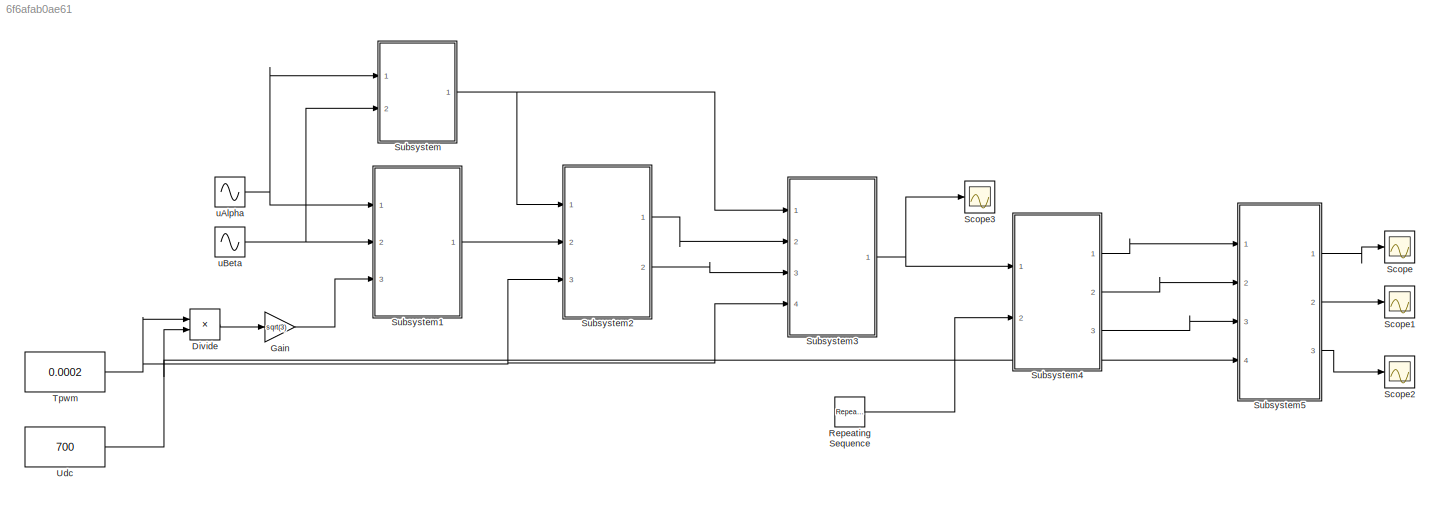
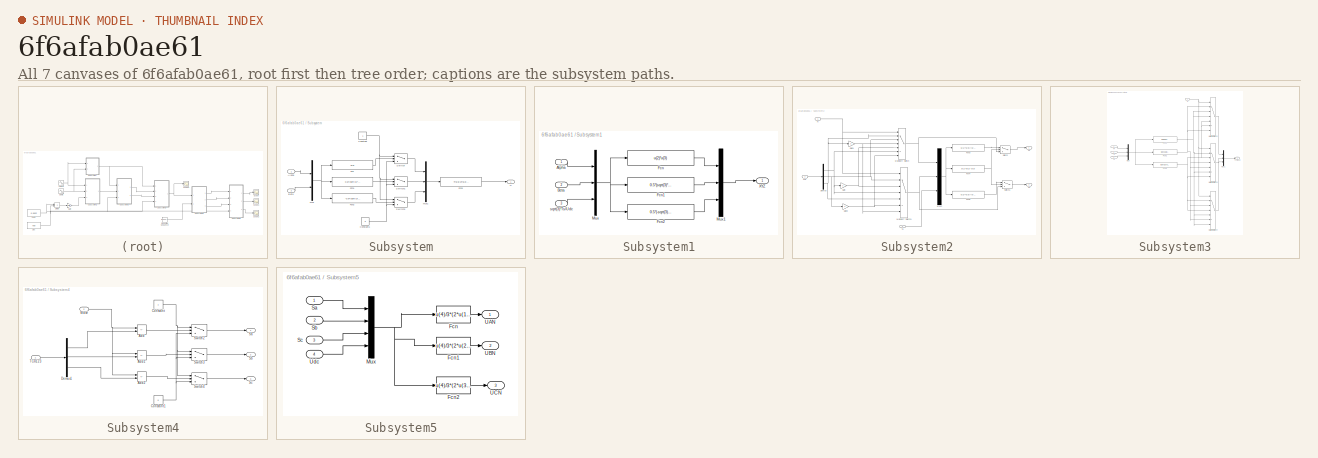
[diagram: thumbnail index - all 7 canvases of the model, root first then tree order]
MODEL slx_6f6afab0ae61
KIND model
CONFIG AbsTol = auto
CONFIG EnableMultiTasking = off
CONFIG FixedStep = auto
CONFIG MaxStep = 0.00001
CONFIG MinStep = auto
CONFIG RelTol = 1e-6
CONFIG SampleTimeConstraint = Unconstrained
CONFIG Solver = ode23s
CONFIG SolverName = ode23s
CONFIG StartTime = 0.0
CONFIG StopTime = 0.1
BLOCK [Product] Divide
  Inputs = */
  Ports = [2, 1]
BLOCK [Gain] Gain
  Gain = sqrt(3)
BLOCK [Reference] Repeating Sequence  REF=simulink/Sources/Repeating
Sequence
  Ports = [0, 1]
  SourceBlock = simulink/Sources/Repeating\nSequence
  SourceProductBaseCode = SL
  SourceType = Repeating table
BLOCK [Scope] Scope
  Floating = off
  NumInputPorts = 1
  Ports = [1]
  ScopeSpecificationString = Simulink.scopes.TimeScopeBlockCfg('CurrentConfiguration', extmgr.ConfigurationSet(extmgr.Configuration('Core','General UI',true),extmgr.Configuration('Core','Source UI',true),extmgr.Configuration('Sources','WiredSimulink',true),extmgr.Configuration('Visuals','Time Domain',true,'SerializedDisplays',{struct('MinYLimReal','-583.33333','MaxYLimReal','583.33333','YLabelReal','','MinYLimMag',' 0.00000',...<+1365ch>
BLOCK [Scope] Scope1
  Floating = off
  NumInputPorts = 1
  Ports = [1]
  ScopeSpecificationString = Simulink.scopes.TimeScopeBlockCfg('CurrentConfiguration', extmgr.ConfigurationSet(extmgr.Configuration('Core','General UI',true),extmgr.Configuration('Core','Source UI',true),extmgr.Configuration('Sources','WiredSimulink',true,'DataLoggingVariableName','ScopeData1'),extmgr.Configuration('Visuals','Time Domain',true),extmgr.Configuration('Tools','Plot Navigation',true),extmgr.Configuration('Tools',...<+40ch>
BLOCK [Scope] Scope2
  Floating = off
  NumInputPorts = 1
  Ports = [1]
  ScopeSpecificationString = Simulink.scopes.TimeScopeBlockCfg('CurrentConfiguration', extmgr.ConfigurationSet(extmgr.Configuration('Core','General UI',true),extmgr.Configuration('Core','Source UI',true),extmgr.Configuration('Sources','WiredSimulink',true,'DataLoggingVariableName','ScopeData2'),extmgr.Configuration('Visuals','Time Domain',true),extmgr.Configuration('Tools','Plot Navigation',true),extmgr.Configuration('Tools',...<+40ch>
BLOCK [Scope] Scope3
  Floating = off
  NumInputPorts = 1
  Ports = [1]
  ScopeSpecificationString = Simulink.scopes.TimeScopeBlockCfg('CurrentConfiguration', extmgr.ConfigurationSet(extmgr.Configuration('Core','General UI',true),extmgr.Configuration('Core','Source UI',true),extmgr.Configuration('Sources','WiredSimulink',true,'DataLoggingVariableName','ScopeData1'),extmgr.Configuration('Visuals','Time Domain',true,'SerializedDisplays',{struct('MinYLimReal','0.000019','MaxYLimReal','0.000081','YLa...<+1407ch>
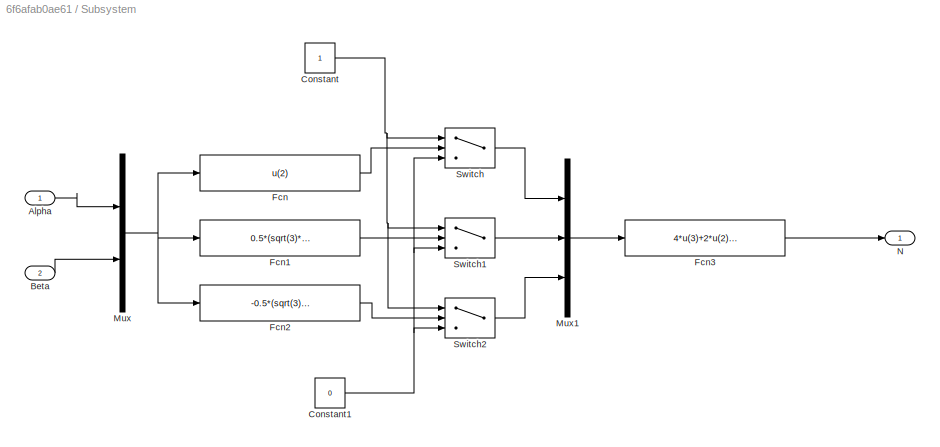
BLOCK [SubSystem] Subsystem
  Ports = [2, 1]
  RequestExecContextInheritance = off
BLOCK [Inport] Subsystem/Alpha 
BLOCK [Inport] Subsystem/Beta
  Port = 2
BLOCK [Constant] Subsystem/Constant
BLOCK [Constant] Subsystem/Constant1
  Value = 0
BLOCK [Fcn] Subsystem/Fcn
  Expr = u(2)
BLOCK [Fcn] Subsystem/Fcn1
  Expr = 0.5*(sqrt(3)*u(1)-u(2))
BLOCK [Fcn] Subsystem/Fcn2
  Expr = -0.5*(sqrt(3)*u(1)+u(2))
BLOCK [Fcn] Subsystem/Fcn3
  Expr = 4*u(3)+2*u(2)+u(1)
BLOCK [Mux] Subsystem/Mux
  DisplayOption = bar
  Inputs = 2
  Ports = [2, 1]
BLOCK [Mux] Subsystem/Mux1
  DisplayOption = bar
  Inputs = 3
  Ports = [3, 1]
BLOCK [Outport] Subsystem/N
BLOCK [Switch] Subsystem/Switch
  Criteria = u2 > Threshold
  InputSameDT = off
  SaturateOnIntegerOverflow = off
BLOCK [Switch] Subsystem/Switch1
  Criteria = u2 > Threshold
  InputSameDT = off
  SaturateOnIntegerOverflow = off
BLOCK [Switch] Subsystem/Switch2
  Criteria = u2 > Threshold
  InputSameDT = off
  SaturateOnIntegerOverflow = off
BLOCK [SubSystem] Subsystem1
  Ports = [3, 1]
  RequestExecContextInheritance = off
BLOCK [Inport] Subsystem1/Alpha 
BLOCK [Inport] Subsystem1/Beta
  Port = 2
BLOCK [Fcn] Subsystem1/Fcn
  Expr = u(2)*u(3)
BLOCK [Fcn] Subsystem1/Fcn1
  Expr = 0.5*(sqrt(3)*u(1)+u(2))*u(3)
BLOCK [Fcn] Subsystem1/Fcn2
  Expr = 0.5*(-sqrt(3)*u(1)+u(2))*u(3)
BLOCK [Mux] Subsystem1/Mux
  DisplayOption = bar
  Inputs = 3
  Ports = [3, 1]
BLOCK [Mux] Subsystem1/Mux1
  DisplayOption = bar
  Inputs = 3
  Ports = [3, 1]
BLOCK [Outport] Subsystem1/XYZ
BLOCK [Inport] Subsystem1/sqrt(3)*Ts//Udc
  Port = 3
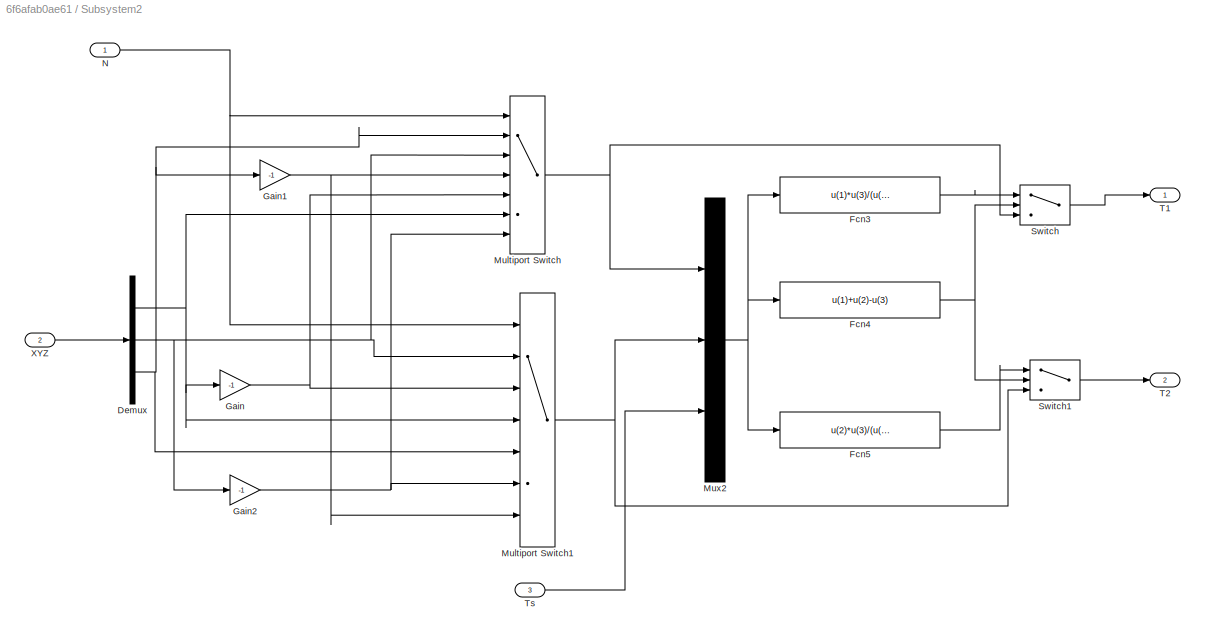
BLOCK [SubSystem] Subsystem2
  Ports = [3, 2]
  RequestExecContextInheritance = off
BLOCK [Demux] Subsystem2/Demux
  Outputs = 3
  Ports = [1, 3]
BLOCK [Fcn] Subsystem2/Fcn3
  Expr = u(1)*u(3)/(u(1)+u(2))
BLOCK [Fcn] Subsystem2/Fcn4
  Expr = u(1)+u(2)-u(3)
BLOCK [Fcn] Subsystem2/Fcn5
  Expr = u(2)*u(3)/(u(1)+u(2))
BLOCK [Gain] Subsystem2/Gain
  Gain = -1
BLOCK [Gain] Subsystem2/Gain1
  Gain = -1
BLOCK [Gain] Subsystem2/Gain2
  Gain = -1
BLOCK [MultiPortSwitch] Subsystem2/Multiport Switch
  InputSameDT = off
  Inputs = 6
  Ports = [7, 1]
  SaturateOnIntegerOverflow = off
BLOCK [MultiPortSwitch] Subsystem2/Multiport Switch1
  InputSameDT = off
  Inputs = 6
  Ports = [7, 1]
  SaturateOnIntegerOverflow = off
BLOCK [Mux] Subsystem2/Mux2
  DisplayOption = bar
  Inputs = 3
  Ports = [3, 1]
BLOCK [Inport] Subsystem2/N
BLOCK [Switch] Subsystem2/Switch
  Criteria = u2 > Threshold
  InputSameDT = off
  SaturateOnIntegerOverflow = off
BLOCK [Switch] Subsystem2/Switch1
  Criteria = u2 > Threshold
  InputSameDT = off
  SaturateOnIntegerOverflow = off
BLOCK [Outport] Subsystem2/T1
BLOCK [Outport] Subsystem2/T2
  Port = 2
BLOCK [Inport] Subsystem2/Ts
  Port = 3
BLOCK [Inport] Subsystem2/XYZ 
  Port = 2
BLOCK [SubSystem] Subsystem3
  Ports = [4, 1]
  RequestExecContextInheritance = off
BLOCK [Fcn] Subsystem3/Fcn1
  Expr = (u(3)-u(1)-u(2))/4
BLOCK [Fcn] Subsystem3/Fcn2
  Expr = (u(3)+u(1)-u(2))/4
BLOCK [Fcn] Subsystem3/Fcn6
  Expr = (u(3)+u(1)+u(2))/4
BLOCK [MultiPortSwitch] Subsystem3/Multiport Switch2
  InputSameDT = off
  Inputs = 6
  Ports = [7, 1]
  SaturateOnIntegerOverflow = off
BLOCK [MultiPortSwitch] Subsystem3/Multiport Switch3
  InputSameDT = off
  Inputs = 6
  Ports = [7, 1]
  SaturateOnIntegerOverflow = off
BLOCK [MultiPortSwitch] Subsystem3/Multiport Switch4
  InputSameDT = off
  Inputs = 6
  Ports = [7, 1]
  SaturateOnIntegerOverflow = off
BLOCK [Mux] Subsystem3/Mux
  DisplayOption = bar
  Inputs = 3
  Ports = [3, 1]
BLOCK [Mux] Subsystem3/Mux1
  DisplayOption = bar
  Inputs = 3
  Ports = [3, 1]
BLOCK [Inport] Subsystem3/N
BLOCK [Inport] Subsystem3/T4
  Port = 2
BLOCK [Inport] Subsystem3/T6
  Port = 3
BLOCK [Outport] Subsystem3/Tcm123
BLOCK [Inport] Subsystem3/Ts
  Port = 4
BLOCK [SubSystem] Subsystem4
  Ports = [2, 3]
  RequestExecContextInheritance = off
BLOCK [Sum] Subsystem4/Add
  IconShape = rectangular
  Inputs = +-
  Ports = [2, 1]
BLOCK [Sum] Subsystem4/Add1
  IconShape = rectangular
  Inputs = +-
  Ports = [2, 1]
BLOCK [Sum] Subsystem4/Add2
  IconShape = rectangular
  Inputs = +-
  Ports = [2, 1]
BLOCK [Constant] Subsystem4/Constant
BLOCK [Constant] Subsystem4/Constant1
  Value = 0
BLOCK [Demux] Subsystem4/Demux1
  Outputs = 3
  Ports = [1, 3]
BLOCK [Outport] Subsystem4/Sa
BLOCK [Outport] Subsystem4/Sb
  Port = 2
BLOCK [Outport] Subsystem4/Sc
  Port = 3
BLOCK [Switch] Subsystem4/Switch2
  Criteria = u2 > Threshold
  InputSameDT = off
  SaturateOnIntegerOverflow = off
BLOCK [Switch] Subsystem4/Switch3
  Criteria = u2 > Threshold
  InputSameDT = off
  SaturateOnIntegerOverflow = off
BLOCK [Switch] Subsystem4/Switch4
  Criteria = u2 > Threshold
  InputSameDT = off
  SaturateOnIntegerOverflow = off
BLOCK [Inport] Subsystem4/TCm123
BLOCK [Inport] Subsystem4/Wave
  Port = 2
BLOCK [SubSystem] Subsystem5
  Ports = [4, 3]
  RequestExecContextInheritance = off
BLOCK [Fcn] Subsystem5/Fcn
  Expr = u(4)/3*(2*u(1)-u(2)-u(3))
BLOCK [Fcn] Subsystem5/Fcn1
  Expr = u(4)/3*(2*u(2)-u(1)-u(3))
BLOCK [Fcn] Subsystem5/Fcn2
  Expr = u(4)/3*(2*u(3)-u(2)-u(1))
BLOCK [Mux] Subsystem5/Mux
  DisplayOption = bar
  Ports = [4, 1]
BLOCK [Inport] Subsystem5/Sa
BLOCK [Inport] Subsystem5/Sb
  Port = 2
BLOCK [Inport] Subsystem5/Sc
  Port = 3
BLOCK [Outport] Subsystem5/UAN
BLOCK [Outport] Subsystem5/UBN
  Port = 2
BLOCK [Outport] Subsystem5/UCN
  Port = 3
BLOCK [Inport] Subsystem5/Udc
  Port = 4
BLOCK [Constant] Tpwm
  Value = 0.0002
BLOCK [Constant] Udc
  Value = 700
BLOCK [Sin] uAlpha
  Amplitude = 200
  Frequency = 2*50*pi
  Ports = [0, 1]
  SampleTime = 0
BLOCK [Sin] uBeta
  Amplitude = 200
  Frequency = 100*pi
  Phase = pi/2
  Ports = [0, 1]
  SampleTime = 0
LINE Divide:1 -> Gain:1
LINE Gain:1 -> Subsystem1:3
LINE Repeating Sequence:1 -> Subsystem4:2
LINE Subsystem/Alpha :1 -> Subsystem/Mux:1
LINE Subsystem/Beta:1 -> Subsystem/Mux:2
NET Subsystem/Constant1:1 -> Subsystem/Switch1:3, Subsystem/Switch2:3, Subsystem/Switch:3
NET Subsystem/Constant:1 -> Subsystem/Switch1:1, Subsystem/Switch2:1, Subsystem/Switch:1
LINE Subsystem/Fcn1:1 -> Subsystem/Switch1:2
LINE Subsystem/Fcn2:1 -> Subsystem/Switch2:2
LINE Subsystem/Fcn3:1 -> Subsystem/N:1
LINE Subsystem/Fcn:1 -> Subsystem/Switch:2
LINE Subsystem/Mux1:1 -> Subsystem/Fcn3:1
NET Subsystem/Mux:1 -> Subsystem/Fcn1:1, Subsystem/Fcn2:1, Subsystem/Fcn:1
LINE Subsystem/Switch1:1 -> Subsystem/Mux1:2
LINE Subsystem/Switch2:1 -> Subsystem/Mux1:3
LINE Subsystem/Switch:1 -> Subsystem/Mux1:1
LINE Subsystem1/Alpha :1 -> Subsystem1/Mux:1
LINE Subsystem1/Beta:1 -> Subsystem1/Mux:2
LINE Subsystem1/Fcn1:1 -> Subsystem1/Mux1:2
LINE Subsystem1/Fcn2:1 -> Subsystem1/Mux1:3
LINE Subsystem1/Fcn:1 -> Subsystem1/Mux1:1
LINE Subsystem1/Mux1:1 -> Subsystem1/XYZ:1
NET Subsystem1/Mux:1 -> Subsystem1/Fcn1:1, Subsystem1/Fcn2:1, Subsystem1/Fcn:1
LINE Subsystem1/sqrt(3)*Ts//Udc:1 -> Subsystem1/Mux:3
LINE Subsystem1:1 -> Subsystem2:2
NET Subsystem2/Demux:1 -> Subsystem2/Gain:1, Subsystem2/Multiport Switch1:4, Subsystem2/Multiport Switch:6
NET Subsystem2/Demux:2 -> Subsystem2/Gain2:1, Subsystem2/Multiport Switch1:2, Subsystem2/Multiport Switch:3
NET Subsystem2/Demux:3 -> Subsystem2/Gain1:1, Subsystem2/Multiport Switch1:5, Subsystem2/Multiport Switch:2
LINE Subsystem2/Fcn3:1 -> Subsystem2/Switch:1
NET Subsystem2/Fcn4:1 -> Subsystem2/Switch1:2, Subsystem2/Switch:2
LINE Subsystem2/Fcn5:1 -> Subsystem2/Switch1:1
NET Subsystem2/Gain1:1 -> Subsystem2/Multiport Switch1:7, Subsystem2/Multiport Switch:4
NET Subsystem2/Gain2:1 -> Subsystem2/Multiport Switch1:6, Subsystem2/Multiport Switch:7
NET Subsystem2/Gain:1 -> Subsystem2/Multiport Switch1:3, Subsystem2/Multiport Switch:5
NET Subsystem2/Multiport Switch1:1 -> Subsystem2/Mux2:2, Subsystem2/Switch1:3
NET Subsystem2/Multiport Switch:1 -> Subsystem2/Mux2:1, Subsystem2/Switch:3
NET Subsystem2/Mux2:1 -> Subsystem2/Fcn3:1, Subsystem2/Fcn4:1, Subsystem2/Fcn5:1
NET Subsystem2/N:1 -> Subsystem2/Multiport Switch1:1, Subsystem2/Multiport Switch:1
LINE Subsystem2/Switch1:1 -> Subsystem2/T2:1
LINE Subsystem2/Switch:1 -> Subsystem2/T1:1
LINE Subsystem2/Ts:1 -> Subsystem2/Mux2:3
LINE Subsystem2/XYZ :1 -> Subsystem2/Demux:1
LINE Subsystem2:1 -> Subsystem3:2
LINE Subsystem2:2 -> Subsystem3:3
NET Subsystem3/Fcn1:1 -> Subsystem3/Multiport Switch2:3, Subsystem3/Multiport Switch2:4, Subsystem3/Multiport Switch3:2, Subsystem3/Multiport Switch3:6, Subsystem3/Multiport Switch4:5, Subsystem3/Multiport Switch4:7
NET Subsystem3/Fcn2:1 -> Subsystem3/Multiport Switch2:2, Subsystem3/Multiport Switch2:7, Subsystem3/Multiport Switch3:4, Subsystem3/Multiport Switch3:5, Subsystem3/Multiport Switch4:3, Subsystem3/Multiport Switch4:6
NET Subsystem3/Fcn6:1 -> Subsystem3/Multiport Switch2:5, Subsystem3/Multiport Switch2:6, Subsystem3/Multiport Switch3:3, Subsystem3/Multiport Switch3:7, Subsystem3/Multiport Switch4:2, Subsystem3/Multiport Switch4:4
LINE Subsystem3/Multiport Switch2:1 -> Subsystem3/Mux1:1
LINE Subsystem3/Multiport Switch3:1 -> Subsystem3/Mux1:2
LINE Subsystem3/Multiport Switch4:1 -> Subsystem3/Mux1:3
LINE Subsystem3/Mux1:1 -> Subsystem3/Tcm123:1
NET Subsystem3/Mux:1 -> Subsystem3/Fcn1:1, Subsystem3/Fcn2:1, Subsystem3/Fcn6:1
NET Subsystem3/N:1 -> Subsystem3/Multiport Switch2:1, Subsystem3/Multiport Switch3:1, Subsystem3/Multiport Switch4:1
LINE Subsystem3/T4:1 -> Subsystem3/Mux:1
LINE Subsystem3/T6:1 -> Subsystem3/Mux:2
LINE Subsystem3/Ts:1 -> Subsystem3/Mux:3
NET Subsystem3:1 -> Scope3:1, Subsystem4:1
LINE Subsystem4/Add1:1 -> Subsystem4/Switch3:2
LINE Subsystem4/Add2:1 -> Subsystem4/Switch4:2
LINE Subsystem4/Add:1 -> Subsystem4/Switch2:2
NET Subsystem4/Constant1:1 -> Subsystem4/Switch2:3, Subsystem4/Switch3:3, Subsystem4/Switch4:3
NET Subsystem4/Constant:1 -> Subsystem4/Switch2:1, Subsystem4/Switch3:1, Subsystem4/Switch4:1
LINE Subsystem4/Demux1:1 -> Subsystem4/Add:2
LINE Subsystem4/Demux1:2 -> Subsystem4/Add1:2
LINE Subsystem4/Demux1:3 -> Subsystem4/Add2:2
LINE Subsystem4/Switch2:1 -> Subsystem4/Sa:1
LINE Subsystem4/Switch3:1 -> Subsystem4/Sb:1
LINE Subsystem4/Switch4:1 -> Subsystem4/Sc:1
LINE Subsystem4/TCm123:1 -> Subsystem4/Demux1:1
NET Subsystem4/Wave:1 -> Subsystem4/Add1:1, Subsystem4/Add2:1, Subsystem4/Add:1
LINE Subsystem4:1 -> Subsystem5:1
LINE Subsystem4:2 -> Subsystem5:2
LINE Subsystem4:3 -> Subsystem5:3
LINE Subsystem5/Fcn1:1 -> Subsystem5/UBN:1
LINE Subsystem5/Fcn2:1 -> Subsystem5/UCN:1
LINE Subsystem5/Fcn:1 -> Subsystem5/UAN:1
NET Subsystem5/Mux:1 -> Subsystem5/Fcn1:1, Subsystem5/Fcn2:1, Subsystem5/Fcn:1
LINE Subsystem5/Sa:1 -> Subsystem5/Mux:1
LINE Subsystem5/Sb:1 -> Subsystem5/Mux:2
LINE Subsystem5/Sc:1 -> Subsystem5/Mux:3
LINE Subsystem5/Udc:1 -> Subsystem5/Mux:4
LINE Subsystem5:1 -> Scope:1
LINE Subsystem5:2 -> Scope1:1
LINE Subsystem5:3 -> Scope2:1
NET Subsystem:1 -> Subsystem2:1, Subsystem3:1
NET Tpwm:1 -> Divide:1, Subsystem2:3, Subsystem3:4
NET Udc:1 -> Divide:2, Subsystem5:4
NET uAlpha:1 -> Subsystem1:1, Subsystem:1
NET uBeta:1 -> Subsystem1:2, Subsystem:2
note: NET lines group one-source signal fan-out (src -> all destinations, sorted); 1:1 wires keep LINE
